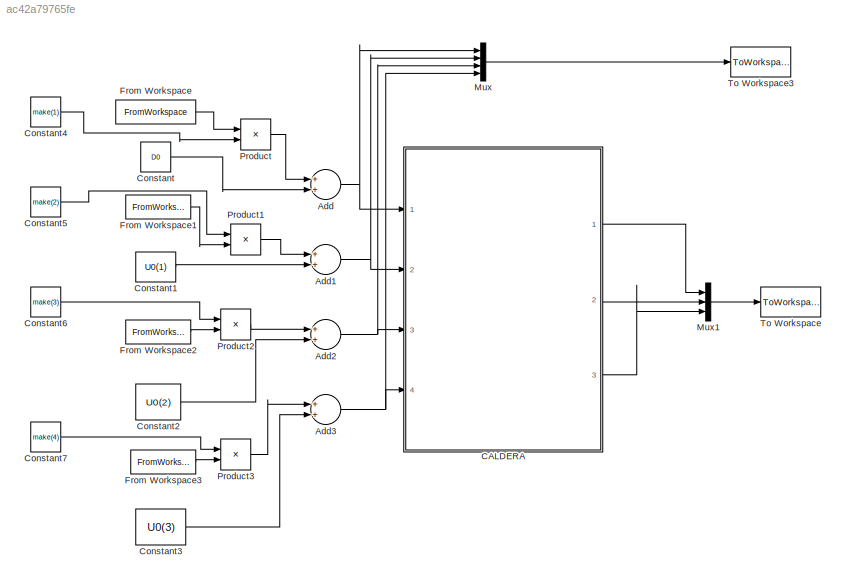
MODEL slx_ac42a79765fe
KIND model
CONFIG AbsTol = auto
CONFIG EnableMultiTasking = on
CONFIG FixedStep = Dt
CONFIG MaxStep = auto
CONFIG MinStep = auto
CONFIG RelTol = 1e-3
CONFIG SampleTimeConstraint = Unconstrained
CONFIG Solver = FixedStepAuto
CONFIG SolverName = FixedStepAuto
CONFIG StartTime = 0.0
CONFIG StopTime = simTime
BLOCK [Sum] Add
  InputSameDT = off
  OutDataTypeStr = Inherit: Inherit via internal rule
  Ports = [2, 1]
  SaturateOnIntegerOverflow = off
BLOCK [Sum] Add1
  InputSameDT = off
  OutDataTypeStr = Inherit: Inherit via internal rule
  Ports = [2, 1]
  SaturateOnIntegerOverflow = off
BLOCK [Sum] Add2
  InputSameDT = off
  OutDataTypeStr = Inherit: Inherit via internal rule
  Ports = [2, 1]
  SaturateOnIntegerOverflow = off
BLOCK [Sum] Add3
  InputSameDT = off
  OutDataTypeStr = Inherit: Inherit via internal rule
  Ports = [2, 1]
  SaturateOnIntegerOverflow = off
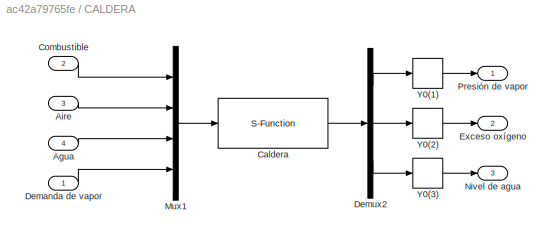
BLOCK [SubSystem] CALDERA
  Ports = [4, 3]
  RequestExecContextInheritance = off
  Variant = off
BLOCK [Inport] CALDERA/Agua
  IconDisplay = Port number
  Port = 4
BLOCK [Inport] CALDERA/Aire
  IconDisplay = Port number
  Port = 3
BLOCK [S-Function] CALDERA/Caldera
  EnableBusSupport = off
  FunctionName = cic2017_boiler
  Parameters = Y0,[U0 D0]
  Ports = [1, 1]
  SFcnIsStateOwnerBlock = off
  SFunctionDeploymentMode = off
BLOCK [Inport] CALDERA/Combustible
  IconDisplay = Port number
  Port = 2
BLOCK [Inport] CALDERA/Demanda de vapor
  IconDisplay = Port number
BLOCK [Demux] CALDERA/Demux2
  DisplayOption = bar
  Outputs = 3
  Ports = [1, 3]
BLOCK [Outport] CALDERA/Exceso oxígeno
  IconDisplay = Port number
  Port = 2
BLOCK [Mux] CALDERA/Mux1
  DisplayOption = bar
  Ports = [4, 1]
BLOCK [Outport] CALDERA/Nivel de agua
  IconDisplay = Port number
  Port = 3
BLOCK [Outport] CALDERA/Presión de vapor
  IconDisplay = Port number
BLOCK [Memory] CALDERA/Y0(1)
  X0 = Y0(1)
BLOCK [Memory] CALDERA/Y0(2)
  X0 = Y0(2)
BLOCK [Memory] CALDERA/Y0(3)
  X0 = Y0(3)
BLOCK [Constant] Constant
  Value = D0
BLOCK [Constant] Constant1
  Value = U0(1)
BLOCK [Constant] Constant2
  Value = U0(2)
BLOCK [Constant] Constant3
  Value = U0(3)
BLOCK [Constant] Constant4
  Value = make(1)
BLOCK [Constant] Constant5
  Value = make(2)
BLOCK [Constant] Constant6
  Value = make(3)
BLOCK [Constant] Constant7
  Value = make(4)
BLOCK [FromWorkspace] From Workspace
  SampleTime = 0
  VariableName = demandaVapor
  ZeroCross = on
BLOCK [FromWorkspace] From Workspace1
  SampleTime = 0
  VariableName = combustible
  ZeroCross = on
BLOCK [FromWorkspace] From Workspace2
  SampleTime = 0
  VariableName = aire
  ZeroCross = on
BLOCK [FromWorkspace] From Workspace3
  SampleTime = 0
  VariableName = agua
  ZeroCross = on
BLOCK [Mux] Mux
  DisplayOption = bar
  Ports = [4, 1]
BLOCK [Mux] Mux1
  DisplayOption = bar
  Inputs = 3
  Ports = [3, 1]
BLOCK [Product] Product
  InputSameDT = off
  OutDataTypeStr = Inherit: Inherit via internal rule
  Ports = [2, 1]
  RndMeth = Floor
  SaturateOnIntegerOverflow = off
BLOCK [Product] Product1
  InputSameDT = off
  OutDataTypeStr = Inherit: Inherit via internal rule
  Ports = [2, 1]
  RndMeth = Floor
  SaturateOnIntegerOverflow = off
BLOCK [Product] Product2
  InputSameDT = off
  OutDataTypeStr = Inherit: Inherit via internal rule
  Ports = [2, 1]
  RndMeth = Floor
  SaturateOnIntegerOverflow = off
BLOCK [Product] Product3
  InputSameDT = off
  OutDataTypeStr = Inherit: Inherit via internal rule
  Ports = [2, 1]
  RndMeth = Floor
  SaturateOnIntegerOverflow = off
BLOCK [ToWorkspace] To Workspace
  FixptAsFi = on
  MaxDataPoints = inf
  Ports = [1]
  SampleTime = -1
  Save2DSignal = 3-D array (concatenate along third dimension)
  SaveFormat = Structure With Time
  VariableName = y
BLOCK [ToWorkspace] To Workspace3
  FixptAsFi = on
  MaxDataPoints = inf
  Ports = [1]
  SampleTime = -1
  Save2DSignal = 3-D array (concatenate along third dimension)
  SaveFormat = Structure With Time
  VariableName = inputs
NET Add1:1 -> CALDERA:2, Mux:2
NET Add2:1 -> CALDERA:3, Mux:3
NET Add3:1 -> CALDERA:4, Mux:4
NET Add:1 -> CALDERA:1, Mux:1
LINE CALDERA/Agua:1 -> CALDERA/Mux1:3
LINE CALDERA/Aire:1 -> CALDERA/Mux1:2
LINE CALDERA/Caldera:1 -> CALDERA/Demux2:1
LINE CALDERA/Combustible:1 -> CALDERA/Mux1:1
LINE CALDERA/Demanda de vapor:1 -> CALDERA/Mux1:4
LINE CALDERA/Demux2:1 -> CALDERA/Y0(1):1
LINE CALDERA/Demux2:2 -> CALDERA/Y0(2):1
LINE CALDERA/Demux2:3 -> CALDERA/Y0(3):1
LINE CALDERA/Mux1:1 -> CALDERA/Caldera:1
LINE CALDERA/Y0(1):1 -> CALDERA/Presión de vapor:1
LINE CALDERA/Y0(2):1 -> CALDERA/Exceso oxígeno:1
LINE CALDERA/Y0(3):1 -> CALDERA/Nivel de agua:1
LINE CALDERA:1 -> Mux1:1
LINE CALDERA:2 -> Mux1:2
LINE CALDERA:3 -> Mux1:3
LINE Constant1:1 -> Add1:2
LINE Constant2:1 -> Add2:2
LINE Constant3:1 -> Add3:2
LINE Constant4:1 -> Product:2
LINE Constant5:1 -> Product1:1
LINE Constant6:1 -> Product2:1
LINE Constant7:1 -> Product3:1
LINE Constant:1 -> Add:2
LINE From Workspace1:1 -> Product1:2
LINE From Workspace2:1 -> Product2:2
LINE From Workspace3:1 -> Product3:2
LINE From Workspace:1 -> Product:1
LINE Mux1:1 -> To Workspace:1
LINE Mux:1 -> To Workspace3:1
LINE Product1:1 -> Add1:1
LINE Product2:1 -> Add2:1
LINE Product3:1 -> Add3:1
LINE Product:1 -> Add:1
note: NET lines group one-source signal fan-out (src -> all destinations, sorted); 1:1 wires keep LINE
